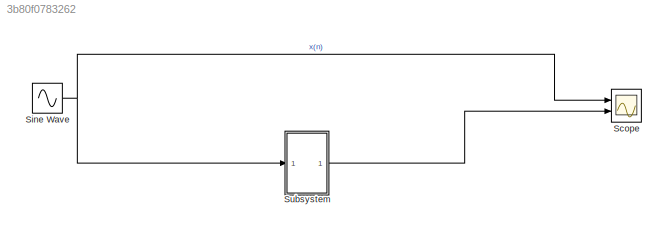
MODEL slx_3b80f0783262
KIND model
CONFIG AbsTol = auto
CONFIG EnableMultiTasking = off
CONFIG FixedStep = 0.0002
CONFIG MaxStep = auto
CONFIG MinStep = auto
CONFIG RelTol = 1e-3
CONFIG SampleTimeConstraint = Unconstrained
CONFIG Solver = FixedStepAuto
CONFIG SolverName = FixedStepAuto
CONFIG StartTime = 0.0
CONFIG StopTime = 10.0
BLOCK [Scope] Scope
  Floating = off
  NumInputPorts = 2
  Ports = [2]
  ScopeSpecificationString = Simulink.scopes.TimeScopeBlockCfg('CurrentConfiguration', extmgr.ConfigurationSet(extmgr.Configuration('Core','General UI',true),extmgr.Configuration('Core','Source UI',true),extmgr.Configuration('Sources','WiredSimulink',true),extmgr.Configuration('Visuals','Time Domain',true,'SerializedDisplays',{struct('MinYLimReal','-1.00000','MaxYLimReal','0.93639','YLabelReal','','MinYLimMag','0.00000','MaxY...<+2031ch>
BLOCK [Sin] Sine Wave
  Frequency = 2000*2*pi
  Ports = [0, 1]
  SampleTime = 0
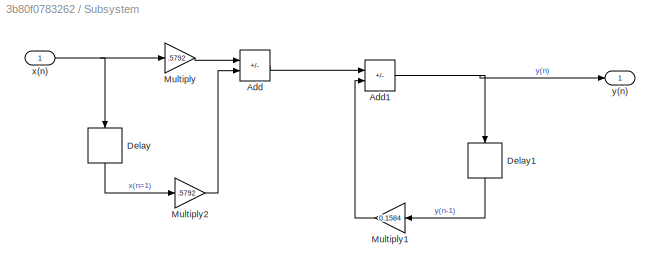
BLOCK [SubSystem] Subsystem
  Ports = [1, 1]
  RequestExecContextInheritance = off
BLOCK [Sum] Subsystem/Add
  IconShape = rectangular
  Inputs = +-
  Ports = [2, 1]
BLOCK [Sum] Subsystem/Add1
  IconShape = rectangular
  Inputs = +-
  Ports = [2, 1]
BLOCK [Delay] Subsystem/Delay
  DelayLength = 1
  InputPortMap = u0
  NameLocation = left
  Ports = [1, 1]
BLOCK [Delay] Subsystem/Delay1
  DelayLength = 1
  InputPortMap = u0
  NameLocation = left
  Ports = [1, 1]
BLOCK [Gain] Subsystem/Multiply
  Gain = .5792
BLOCK [Gain] Subsystem/Multiply1
  Gain = 0.1584
  NameLocation = top
BLOCK [Gain] Subsystem/Multiply2
  Gain = .5792
BLOCK [Inport] Subsystem/x(n)
BLOCK [Outport] Subsystem/y(n)
NET Sine Wave:1 -> Scope:1, Subsystem:1
NET Subsystem/Add1:1 -> Subsystem/Delay1:1, Subsystem/y(n):1
LINE Subsystem/Add:1 -> Subsystem/Add1:1
LINE Subsystem/Delay1:1 -> Subsystem/Multiply1:1
LINE Subsystem/Delay:1 -> Subsystem/Multiply2:1
LINE Subsystem/Multiply1:1 -> Subsystem/Add1:2
LINE Subsystem/Multiply2:1 -> Subsystem/Add:2
LINE Subsystem/Multiply:1 -> Subsystem/Add:1
NET Subsystem/x(n):1 -> Subsystem/Delay:1, Subsystem/Multiply:1
LINE Subsystem:1 -> Scope:2
note: NET lines group one-source signal fan-out (src -> all destinations, sorted); 1:1 wires keep LINE
